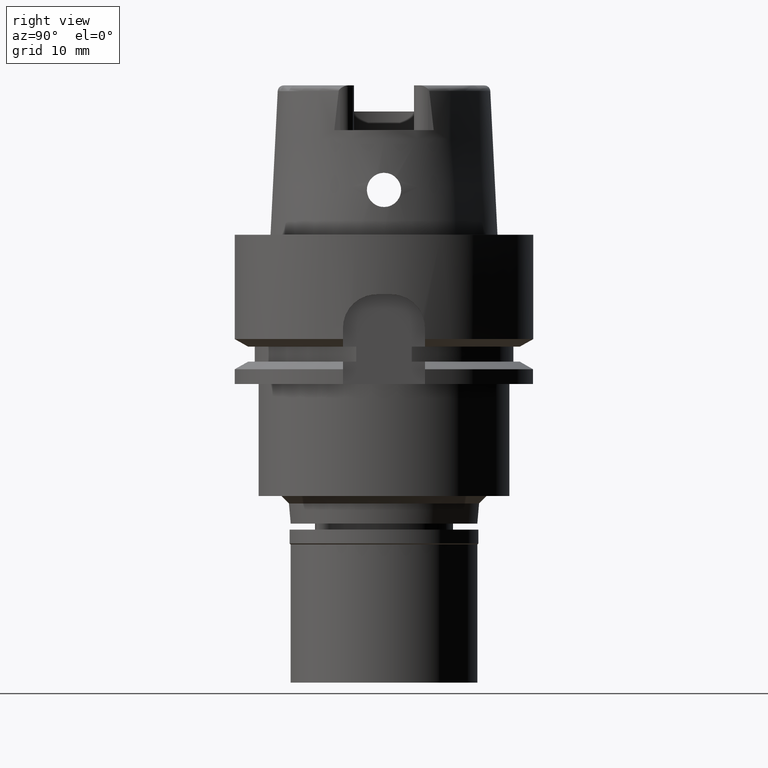
[diagram: clean part render]
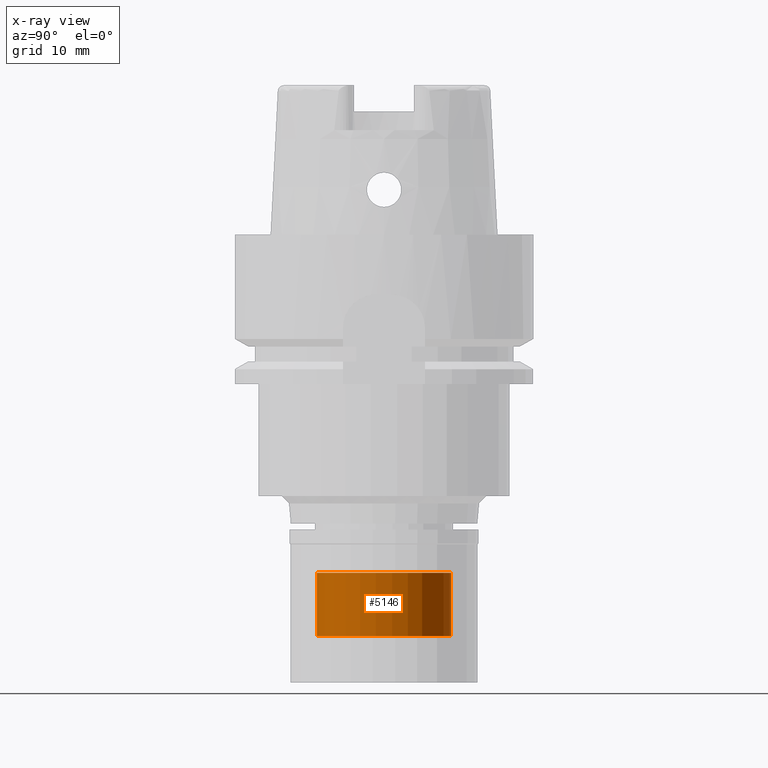
[diagram: x-ray — body ghosted, one internal face saturated and labeled with its STEP entity id]
A machine part, right view, then the same camera in x-ray: the body is ghosted and one INTERNAL B-rep face — a face not visible from any outside direction — is saturated and labeled: STEP entity #5146.
In plain terms, the highlighted cylindrical surface (partial cylindrical patch) has radius 9 mm, axis along (0, 0, -1).
Its self-contained STEP definition (entity closure, byte-faithful):
#60 = CYLINDRICAL_SURFACE ( 'NONE', #2709, 9.000000000000000000 ) ;
#300 = CIRCLE ( 'NONE', #3431, 9.000000000000000000 ) ;
#350 = EDGE_LOOP ( 'NONE', ( #2915, #5422, #3264, #4538 ) ) ;
#450 = VERTEX_POINT ( 'NONE', #4400 ) ;
#680 = LINE ( 'NONE', #2450, #2353 ) ;
#708 = VERTEX_POINT ( 'NONE', #3225 ) ;
#806 = AXIS2_PLACEMENT_3D ( 'NONE', #2240, #2545, #2322 ) ;
#1137 = VERTEX_POINT ( 'NONE', #2575 ) ;
#1273 = FACE_OUTER_BOUND ( 'NONE', #350, .T. ) ;
#1951 = EDGE_CURVE ( 'NONE', #708, #1137, #300, .T. ) ;
#2211 = EDGE_CURVE ( 'NONE', #708, #450, #3215, .T. ) ;
#2240 = CARTESIAN_POINT ( 'NONE',  ( 0.0000000000000000000, 1.514765625864999983E-14, -53.79999999999999716 ) ) ;
#2322 = DIRECTION ( 'NONE',  ( 0.0000000000000000000, -1.000000000000000000, 0.0000000000000000000 ) ) ;
#2353 = VECTOR ( 'NONE', #2499, 1000.000000000000000 ) ;
#2450 = CARTESIAN_POINT ( 'NONE',  ( 0.0000000000000000000, -9.000000000000000000, -45.29999999999999716 ) ) ;
#2499 = DIRECTION ( 'NONE',  ( 0.0000000000000000000, 0.0000000000000000000, -1.000000000000000000 ) ) ;
#2545 = DIRECTION ( 'NONE',  ( 0.0000000000000000000, 0.0000000000000000000, 1.000000000000000000 ) ) ;
#2575 = CARTESIAN_POINT ( 'NONE',  ( 0.0000000000000000000, -9.000000000000000000, -45.29999999999999716 ) ) ;
#2709 = AXIS2_PLACEMENT_3D ( 'NONE', #3454, #3396, #5152 ) ;
#2909 = CARTESIAN_POINT ( 'NONE',  ( 0.0000000000000000000, 1.514765625864999983E-14, -45.29999999999999716 ) ) ;
#2915 = ORIENTED_EDGE ( 'NONE', *, *, #1951, .T. ) ;
#3215 = LINE ( 'NONE', #3580, #4475 ) ;
#3225 = CARTESIAN_POINT ( 'NONE',  ( 0.0000000000000000000, 9.000000000000000000, -45.29999999999999716 ) ) ;
#3264 = ORIENTED_EDGE ( 'NONE', *, *, #3623, .T. ) ;
#3396 = DIRECTION ( 'NONE',  ( 0.0000000000000000000, 0.0000000000000000000, -1.000000000000000000 ) ) ;
#3431 = AXIS2_PLACEMENT_3D ( 'NONE', #2909, #4957, #4205 ) ;
#3454 = CARTESIAN_POINT ( 'NONE',  ( 0.0000000000000000000, 1.514765625864999983E-14, 23.68999999999999773 ) ) ;
#3580 = CARTESIAN_POINT ( 'NONE',  ( 0.0000000000000000000, 9.000000000000000000, -45.29999999999999716 ) ) ;
#3623 = EDGE_CURVE ( 'NONE', #5350, #450, #5000, .T. ) ;
#4084 = DIRECTION ( 'NONE',  ( 0.0000000000000000000, 0.0000000000000000000, -1.000000000000000000 ) ) ;
#4205 = DIRECTION ( 'NONE',  ( 0.0000000000000000000, 1.000000000000000000, 0.0000000000000000000 ) ) ;
#4400 = CARTESIAN_POINT ( 'NONE',  ( 0.0000000000000000000, 9.000000000000000000, -53.79999999999999716 ) ) ;
#4475 = VECTOR ( 'NONE', #4084, 1000.000000000000000 ) ;
#4538 = ORIENTED_EDGE ( 'NONE', *, *, #2211, .F. ) ;
#4957 = DIRECTION ( 'NONE',  ( 0.0000000000000000000, 0.0000000000000000000, -1.000000000000000000 ) ) ;
#5000 = CIRCLE ( 'NONE', #806, 9.000000000000000000 ) ;
#5012 = EDGE_CURVE ( 'NONE', #1137, #5350, #680, .T. ) ;
#5146 = ADVANCED_FACE ( 'NONE', ( #1273 ), #60, .T. ) ;
#5152 = DIRECTION ( 'NONE',  ( 0.0000000000000000000, -1.000000000000000000, 0.0000000000000000000 ) ) ;
#5298 = CARTESIAN_POINT ( 'NONE',  ( 0.0000000000000000000, -9.000000000000000000, -53.79999999999999716 ) ) ;
#5350 = VERTEX_POINT ( 'NONE', #5298 ) ;
#5422 = ORIENTED_EDGE ( 'NONE', *, *, #5012, .T. ) ;